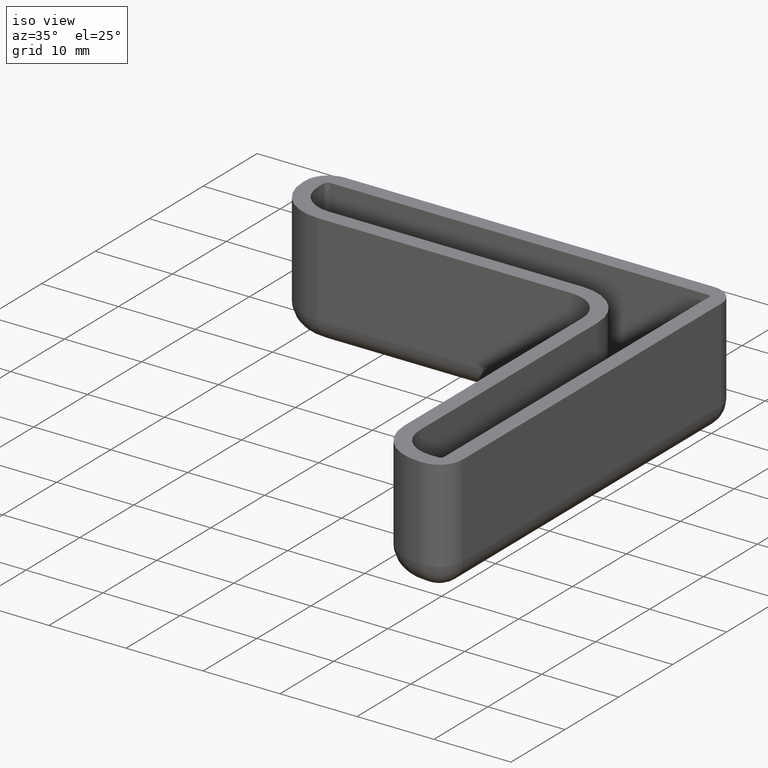
[diagram: clean part render]
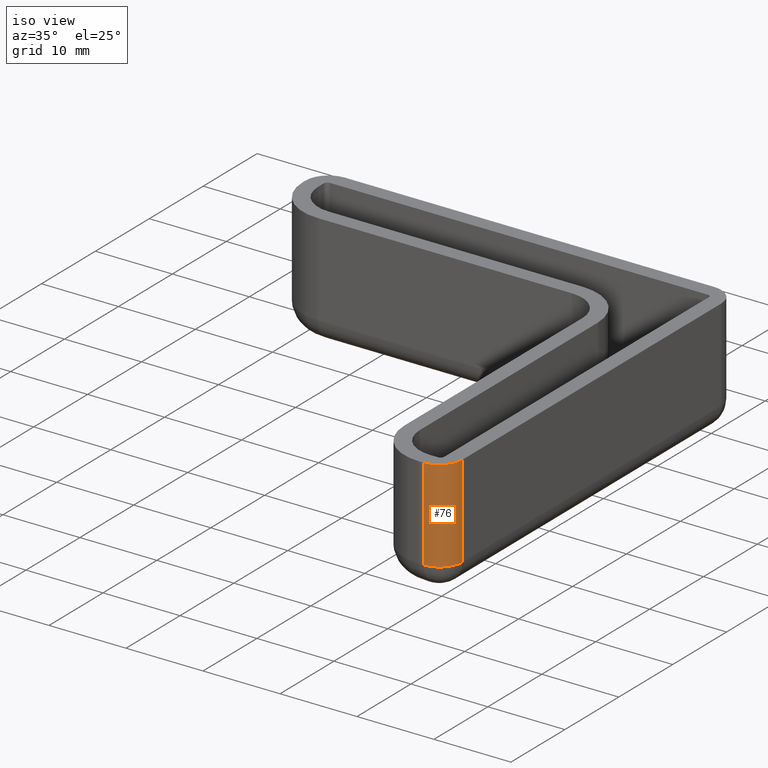
[diagram: same view with one face highlighted and labeled with its STEP entity id]
A machine part, iso view. The second image highlights one B-rep face of the part: STEP entity #76.
In plain terms, the highlighted cylindrical surface (edge-blend (fillet) strip) has radius 3 mm, axis along (0, 0, -1).
Its self-contained STEP definition (entity closure, byte-faithful):
#76 = ADVANCED_FACE( '', ( #118 ), #119, .T. );
#118 = FACE_OUTER_BOUND( '', #197, .T. );
#119 = CYLINDRICAL_SURFACE( '', #198, 3.00000000000000 );
#197 = EDGE_LOOP( '', ( #300, #301, #302, #303 ) );
#198 = AXIS2_PLACEMENT_3D( '', #304, #305, #306 );
#300 = ORIENTED_EDGE( '', *, *, #600, .F. );
#301 = ORIENTED_EDGE( '', *, *, #601, .T. );
#302 = ORIENTED_EDGE( '', *, *, #602, .T. );
#303 = ORIENTED_EDGE( '', *, *, #576, .F. );
#304 = CARTESIAN_POINT( '', ( -1.00000000000000, -49.0000000000000, -15.0000000000000 ) );
#305 = DIRECTION( '', ( 0.000000000000000, 0.000000000000000, -1.00000000000000 ) );
#306 = DIRECTION( '', ( 1.00000000000000, -1.83690953073357E-016, 0.000000000000000 ) );
#576 = EDGE_CURVE( '', #669, #670, #671, .T. );
#600 = EDGE_CURVE( '', #717, #669, #718, .T. );
#601 = EDGE_CURVE( '', #717, #719, #720, .T. );
#602 = EDGE_CURVE( '', #719, #670, #721, .T. );
#669 = VERTEX_POINT( '', #819 );
#670 = VERTEX_POINT( '', #820 );
#671 = CIRCLE( '', #821, 3.00000000000000 );
#717 = VERTEX_POINT( '', #879 );
#718 = LINE( '', #880, #881 );
#719 = VERTEX_POINT( '', #882 );
#720 = CIRCLE( '', #883, 3.00000000000000 );
#721 = LINE( '', #884, #885 );
#819 = CARTESIAN_POINT( '', ( -1.00000000000000, -52.0000000000000, 0.000000000000000 ) );
#820 = CARTESIAN_POINT( '', ( 1.99999999999999, -49.0000000000000, 0.000000000000000 ) );
#821 = AXIS2_PLACEMENT_3D( '', #1023, #1024, #1025 );
#879 = CARTESIAN_POINT( '', ( -1.00000000000000, -52.0000000000000, -12.0000000000000 ) );
#880 = CARTESIAN_POINT( '', ( -1.00000000000000, -52.0000000000000, -15.0000000000000 ) );
#881 = VECTOR( '', #1071, 1000.00000000000 );
#882 = CARTESIAN_POINT( '', ( 1.99999999999999, -49.0000000000000, -12.0000000000000 ) );
#883 = AXIS2_PLACEMENT_3D( '', #1072, #1073, #1074 );
#884 = CARTESIAN_POINT( '', ( 1.99999999999999, -49.0000000000000, -15.0000000000000 ) );
#885 = VECTOR( '', #1075, 1000.00000000000 );
#1023 = CARTESIAN_POINT( '', ( -1.00000000000000, -49.0000000000000, 0.000000000000000 ) );
#1024 = DIRECTION( '', ( 0.000000000000000, 0.000000000000000, 1.00000000000000 ) );
#1025 = DIRECTION( '', ( -1.83690953073357E-016, -1.00000000000000, 0.000000000000000 ) );
#1071 = DIRECTION( '', ( 0.000000000000000, 0.000000000000000, 1.00000000000000 ) );
#1072 = CARTESIAN_POINT( '', ( -1.00000000000000, -49.0000000000000, -12.0000000000000 ) );
#1073 = DIRECTION( '', ( 0.000000000000000, 0.000000000000000, 1.00000000000000 ) );
#1074 = DIRECTION( '', ( -1.00000000000000, 1.22460635382238E-016, 0.000000000000000 ) );
#1075 = DIRECTION( '', ( 0.000000000000000, 0.000000000000000, 1.00000000000000 ) );